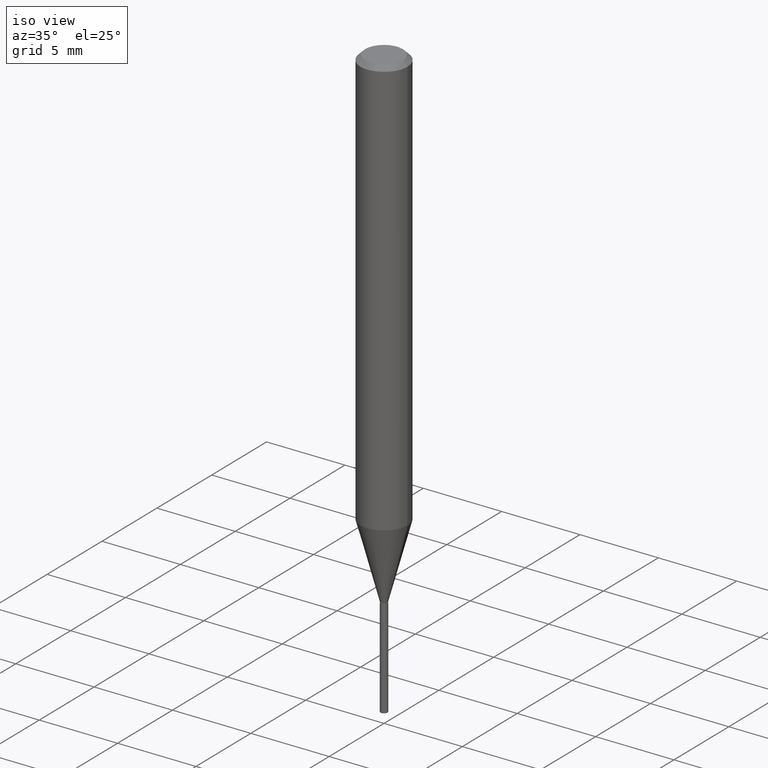
[diagram: clean part render]
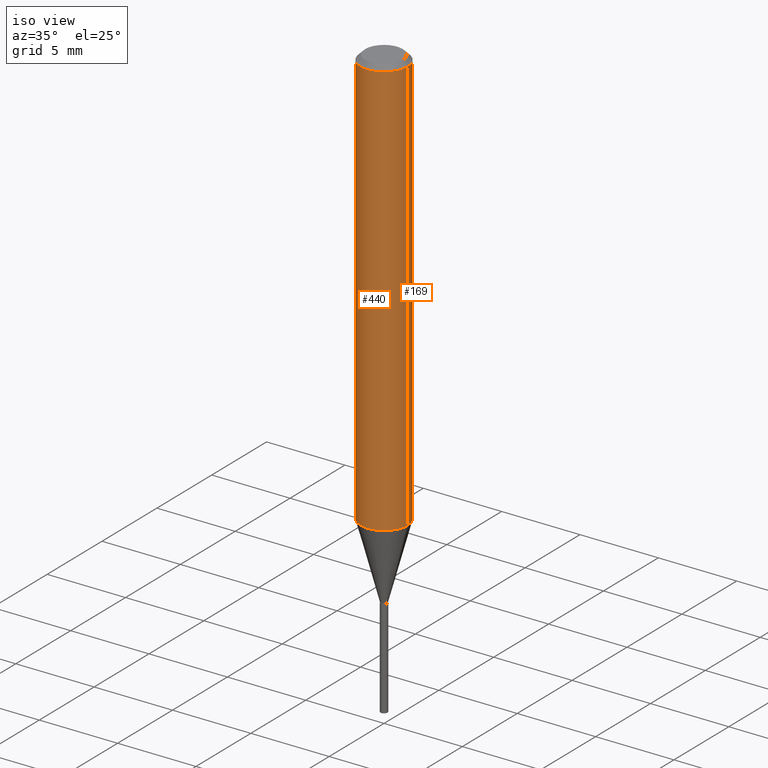
[diagram: same view with one multi-face feature highlighted, each face labeled with its STEP entity id]
A machine part, iso view. The highlighted faces form ONE feature: a constant-radius fillet chain: 2 tangent blend faces with common blend radius 1.4999 mm. The faces share edges in the B-rep.
Their STEP definitions:
[1] entity #169 (Cylinder):
#43 = CARTESIAN_POINT ( 'NONE',  ( 0.05904999999999999832, -4.535783407291118600E-16, -0.01181000000000007218 ) ) ;
#50 = VECTOR ( 'NONE', #114, 39.37007874015748143 ) ;
#60 = VERTEX_POINT ( 'NONE', #181 ) ;
#63 = EDGE_CURVE ( 'NONE', #451, #60, #105, .T. ) ;
#79 = LINE ( 'NONE', #340, #132 ) ;
#81 = CARTESIAN_POINT ( 'NONE',  ( 0.000000000000000000, 0.000000000000000000, 0.000000000000000000 ) ) ;
#105 = CIRCLE ( 'NONE', #445, 0.05904999999999999832 ) ;
#114 = DIRECTION ( 'NONE',  ( -2.445468806185136877E-29, 3.491481338843145188E-15, 1.000000000000000000 ) ) ;
#120 = DIRECTION ( 'NONE',  ( -2.445468806185136877E-29, 3.491481338843145188E-15, 1.000000000000000000 ) ) ;
#132 = VECTOR ( 'NONE', #120, 39.37007874015748143 ) ;
#159 = FACE_OUTER_BOUND ( 'NONE', #367, .T. ) ;
#169 = ADVANCED_FACE ( 'NONE', ( #159 ), #428, .T. ) ;
#173 = DIRECTION ( 'NONE',  ( -2.445468806185136597E-29, 3.491481338843145583E-15, 1.000000000000000000 ) ) ;
#181 = CARTESIAN_POINT ( 'NONE',  ( -0.05904999999999999832, -1.440013032020331894E-15, -0.01181000000000007218 ) ) ;
#208 = ORIENTED_EDGE ( 'NONE', *, *, #375, .F. ) ;
#210 = ORIENTED_EDGE ( 'NONE', *, *, #319, .T. ) ;
#225 = CARTESIAN_POINT ( 'NONE',  ( 0.05905000000000013016, -4.090286586478981149E-15, -1.053404639298528345 ) ) ;
#229 = CARTESIAN_POINT ( 'NONE',  ( 0.05905000000000006771, -4.123439461173745257E-16, 2.879382386107503723E-30 ) ) ;
#245 = DIRECTION ( 'NONE',  ( -2.445468806185136597E-29, 3.491481338843145583E-15, 1.000000000000000000 ) ) ;
#246 = ORIENTED_EDGE ( 'NONE', *, *, #479, .T. ) ;
#250 = VERTEX_POINT ( 'NONE', #374 ) ;
#259 = DIRECTION ( 'NONE',  ( -2.445468806185136597E-29, 3.491481338843145583E-15, 1.000000000000000000 ) ) ;
#280 = CIRCLE ( 'NONE', #403, 0.05905000000000013016 ) ;
#286 = CARTESIAN_POINT ( 'NONE',  ( 2.576068185695256609E-29, -3.677942640361607017E-15, -1.053404639298528345 ) ) ;
#319 = EDGE_CURVE ( 'NONE', #250, #60, #79, .T. ) ;
#325 = ORIENTED_EDGE ( 'NONE', *, *, #63, .F. ) ;
#340 = CARTESIAN_POINT ( 'NONE',  ( -0.05905000000000006771, 4.195754854663396409E-16, -2.904631170795525045E-30 ) ) ;
#360 = AXIS2_PLACEMENT_3D ( 'NONE', #81, #259, #387 ) ;
#367 = EDGE_LOOP ( 'NONE', ( #246, #210, #325, #208 ) ) ;
#374 = CARTESIAN_POINT ( 'NONE',  ( -0.05905000000000013016, -3.258367154895266735E-15, -1.053404639298528345 ) ) ;
#375 = EDGE_CURVE ( 'NONE', #489, #451, #388, .T. ) ;
#387 = DIRECTION ( 'NONE',  ( 1.000000000000000000, -6.982962677686266711E-15, 4.876176775795936353E-29 ) ) ;
#388 = LINE ( 'NONE', #229, #50 ) ;
#403 = AXIS2_PLACEMENT_3D ( 'NONE', #286, #245, #405 ) ;
#405 = DIRECTION ( 'NONE',  ( 1.000000000000000000, -6.982962677686265133E-15, 0.000000000000000000 ) ) ;
#419 = CARTESIAN_POINT ( 'NONE',  ( 2.888098660104664204E-31, -4.123439461173780263E-17, -0.01181000000000007218 ) ) ;
#428 = CYLINDRICAL_SURFACE ( 'NONE', #360, 0.05905000000000006771 ) ;
#445 = AXIS2_PLACEMENT_3D ( 'NONE', #419, #173, #488 ) ;
#451 = VERTEX_POINT ( 'NONE', #43 ) ;
#479 = EDGE_CURVE ( 'NONE', #489, #250, #280, .T. ) ;
#488 = DIRECTION ( 'NONE',  ( 1.000000000000000000, -6.982962677686266711E-15, 0.000000000000000000 ) ) ;
#489 = VERTEX_POINT ( 'NONE', #225 ) ;
[2] entity #440 (Cylinder):
#1 = DIRECTION ( 'NONE',  ( 1.000000000000000000, -6.982962677686266711E-15, 0.000000000000000000 ) ) ;
#37 = CIRCLE ( 'NONE', #48, 0.05904999999999999832 ) ;
#43 = CARTESIAN_POINT ( 'NONE',  ( 0.05904999999999999832, -4.535783407291118600E-16, -0.01181000000000007218 ) ) ;
#48 = AXIS2_PLACEMENT_3D ( 'NONE', #185, #194, #1 ) ;
#50 = VECTOR ( 'NONE', #114, 39.37007874015748143 ) ;
#54 = CYLINDRICAL_SURFACE ( 'NONE', #434, 0.05905000000000006771 ) ;
#58 = ORIENTED_EDGE ( 'NONE', *, *, #157, .F. ) ;
#60 = VERTEX_POINT ( 'NONE', #181 ) ;
#64 = DIRECTION ( 'NONE',  ( 1.000000000000000000, -6.982962677686265133E-15, 0.000000000000000000 ) ) ;
#79 = LINE ( 'NONE', #340, #132 ) ;
#85 = EDGE_CURVE ( 'NONE', #250, #489, #126, .T. ) ;
#114 = DIRECTION ( 'NONE',  ( -2.445468806185136877E-29, 3.491481338843145188E-15, 1.000000000000000000 ) ) ;
#120 = DIRECTION ( 'NONE',  ( -2.445468806185136877E-29, 3.491481338843145188E-15, 1.000000000000000000 ) ) ;
#126 = CIRCLE ( 'NONE', #251, 0.05905000000000013016 ) ;
#132 = VECTOR ( 'NONE', #120, 39.37007874015748143 ) ;
#157 = EDGE_CURVE ( 'NONE', #60, #451, #37, .T. ) ;
#164 = DIRECTION ( 'NONE',  ( 1.000000000000000000, -6.982962677686266711E-15, 4.876176775795936353E-29 ) ) ;
#181 = CARTESIAN_POINT ( 'NONE',  ( -0.05904999999999999832, -1.440013032020331894E-15, -0.01181000000000007218 ) ) ;
#185 = CARTESIAN_POINT ( 'NONE',  ( 2.888098660104664204E-31, -4.123439461173780263E-17, -0.01181000000000007218 ) ) ;
#194 = DIRECTION ( 'NONE',  ( -2.445468806185136597E-29, 3.491481338843145583E-15, 1.000000000000000000 ) ) ;
#198 = CARTESIAN_POINT ( 'NONE',  ( 0.000000000000000000, 0.000000000000000000, 0.000000000000000000 ) ) ;
#216 = ORIENTED_EDGE ( 'NONE', *, *, #375, .T. ) ;
#225 = CARTESIAN_POINT ( 'NONE',  ( 0.05905000000000013016, -4.090286586478981149E-15, -1.053404639298528345 ) ) ;
#229 = CARTESIAN_POINT ( 'NONE',  ( 0.05905000000000006771, -4.123439461173745257E-16, 2.879382386107503723E-30 ) ) ;
#250 = VERTEX_POINT ( 'NONE', #374 ) ;
#251 = AXIS2_PLACEMENT_3D ( 'NONE', #406, #408, #64 ) ;
#310 = ORIENTED_EDGE ( 'NONE', *, *, #85, .T. ) ;
#319 = EDGE_CURVE ( 'NONE', #250, #60, #79, .T. ) ;
#340 = CARTESIAN_POINT ( 'NONE',  ( -0.05905000000000006771, 4.195754854663396409E-16, -2.904631170795525045E-30 ) ) ;
#351 = DIRECTION ( 'NONE',  ( -2.445468806185136597E-29, 3.491481338843145583E-15, 1.000000000000000000 ) ) ;
#374 = CARTESIAN_POINT ( 'NONE',  ( -0.05905000000000013016, -3.258367154895266735E-15, -1.053404639298528345 ) ) ;
#375 = EDGE_CURVE ( 'NONE', #489, #451, #388, .T. ) ;
#388 = LINE ( 'NONE', #229, #50 ) ;
#389 = FACE_OUTER_BOUND ( 'NONE', #460, .T. ) ;
#406 = CARTESIAN_POINT ( 'NONE',  ( 2.576068185695256609E-29, -3.677942640361607017E-15, -1.053404639298528345 ) ) ;
#408 = DIRECTION ( 'NONE',  ( -2.445468806185136597E-29, 3.491481338843145583E-15, 1.000000000000000000 ) ) ;
#434 = AXIS2_PLACEMENT_3D ( 'NONE', #198, #351, #164 ) ;
#440 = ADVANCED_FACE ( 'NONE', ( #389 ), #54, .T. ) ;
#451 = VERTEX_POINT ( 'NONE', #43 ) ;
#460 = EDGE_LOOP ( 'NONE', ( #485, #310, #216, #58 ) ) ;
#485 = ORIENTED_EDGE ( 'NONE', *, *, #319, .F. ) ;
#489 = VERTEX_POINT ( 'NONE', #225 ) ;